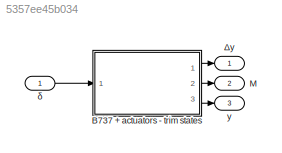
MODEL slx_5357ee45b034
KIND model
CONFIG AbsTol = auto
CONFIG EnableMultiTasking = off
CONFIG FixedStep = auto
CONFIG MaxStep = auto
CONFIG MinStep = auto
CONFIG RelTol = 1e-3
CONFIG SampleTimeConstraint = Unconstrained
CONFIG Solver = VariableStepAuto
CONFIG SolverName = VariableStepAuto
CONFIG StartTime = 0.0
CONFIG StopTime = 10.0
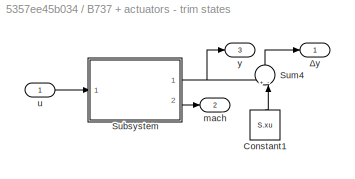
BLOCK [SubSystem] B737 + actuators - trim states
  Ports = [1, 3]
  RequestExecContextInheritance = off
BLOCK [Constant] B737 + actuators - trim states/Constant1
  Value = S.xu
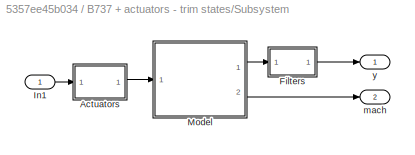
BLOCK [SubSystem] B737 + actuators - trim states/Subsystem
  Ports = [1, 2]
  RequestExecContextInheritance = off
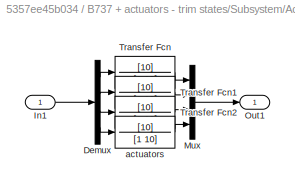
BLOCK [SubSystem] B737 + actuators - trim states/Subsystem/Actuators
  Ports = [1, 1]
  RequestExecContextInheritance = off
BLOCK [Demux] B737 + actuators - trim states/Subsystem/Actuators/Demux
  DisplayOption = bar
  Ports = [1, 4]
BLOCK [Inport] B737 + actuators - trim states/Subsystem/Actuators/In1
  IconDisplay = Port number
BLOCK [Mux] B737 + actuators - trim states/Subsystem/Actuators/Mux
  DisplayOption = bar
  Ports = [4, 1]
BLOCK [Outport] B737 + actuators - trim states/Subsystem/Actuators/Out1
  IconDisplay = Port number
BLOCK [TransferFcn] B737 + actuators - trim states/Subsystem/Actuators/Transfer Fcn
  Denominator = [1 10]
  Numerator = [10]
BLOCK [TransferFcn] B737 + actuators - trim states/Subsystem/Actuators/Transfer Fcn1
  Denominator = [1 10]
  Numerator = [10]
BLOCK [TransferFcn] B737 + actuators - trim states/Subsystem/Actuators/Transfer Fcn2
  Denominator = [1 10]
  Numerator = [10]
BLOCK [TransferFcn] B737 + actuators - trim states/Subsystem/Actuators/actuators
  Denominator = [1 10]
  Numerator = [10]
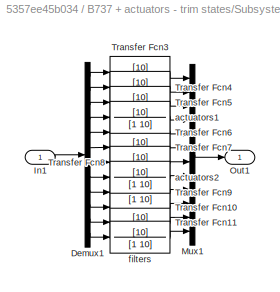
BLOCK [SubSystem] B737 + actuators - trim states/Subsystem/Filters
  Ports = [1, 1]
  RequestExecContextInheritance = off
BLOCK [Demux] B737 + actuators - trim states/Subsystem/Filters/Demux1
  DisplayOption = bar
  Outputs = 12
  Ports = [1, 12]
BLOCK [Inport] B737 + actuators - trim states/Subsystem/Filters/In1
  IconDisplay = Port number
BLOCK [Mux] B737 + actuators - trim states/Subsystem/Filters/Mux1
  DisplayOption = bar
  Inputs = 12
  Ports = [12, 1]
BLOCK [Outport] B737 + actuators - trim states/Subsystem/Filters/Out1
  IconDisplay = Port number
BLOCK [TransferFcn] B737 + actuators - trim states/Subsystem/Filters/Transfer Fcn10
  Denominator = [1 10]
  Numerator = [10]
BLOCK [TransferFcn] B737 + actuators - trim states/Subsystem/Filters/Transfer Fcn11
  Denominator = [1 10]
  Numerator = [10]
BLOCK [TransferFcn] B737 + actuators - trim states/Subsystem/Filters/Transfer Fcn3
  Denominator = [1 10]
  Numerator = [10]
BLOCK [TransferFcn] B737 + actuators - trim states/Subsystem/Filters/Transfer Fcn4
  Denominator = [1 10]
  Numerator = [10]
BLOCK [TransferFcn] B737 + actuators - trim states/Subsystem/Filters/Transfer Fcn5
  Denominator = [1 10]
  Numerator = [10]
BLOCK [TransferFcn] B737 + actuators - trim states/Subsystem/Filters/Transfer Fcn6
  Denominator = [1 10]
  Numerator = [10]
BLOCK [TransferFcn] B737 + actuators - trim states/Subsystem/Filters/Transfer Fcn7
  Denominator = [1 10]
  Numerator = [10]
BLOCK [TransferFcn] B737 + actuators - trim states/Subsystem/Filters/Transfer Fcn8
  Denominator = [1 10]
  Numerator = [10]
BLOCK [TransferFcn] B737 + actuators - trim states/Subsystem/Filters/Transfer Fcn9
  Denominator = [1 10]
  Numerator = [10]
BLOCK [TransferFcn] B737 + actuators - trim states/Subsystem/Filters/actuators1
  Denominator = [1 10]
  Numerator = [10]
BLOCK [TransferFcn] B737 + actuators - trim states/Subsystem/Filters/actuators2
  Denominator = [1 10]
  Numerator = [10]
BLOCK [TransferFcn] B737 + actuators - trim states/Subsystem/Filters/filters
  Denominator = [1 10]
  Numerator = [10]
BLOCK [Inport] B737 + actuators - trim states/Subsystem/In1
  IconDisplay = Port number
BLOCK [ModelReference] B737 + actuators - trim states/Subsystem/Model
  ModelNameDialog = B737_JSB.slx
  ModelReferenceVersion = 1.187
  Ports = [1, 2]
BLOCK [Outport] B737 + actuators - trim states/Subsystem/mach
  IconDisplay = Port number
  Port = 2
BLOCK [Outport] B737 + actuators - trim states/Subsystem/y
  IconDisplay = Port number
BLOCK [Sum] B737 + actuators - trim states/Sum4
  IconShape = round
  InputSameDT = off
  Inputs = +-|
  OutDataTypeStr = Inherit: Inherit via internal rule
  Ports = [2, 1]
  SaturateOnIntegerOverflow = off
BLOCK [Outport] B737 + actuators - trim states/mach
  IconDisplay = Port number
  Port = 2
BLOCK [Inport] B737 + actuators - trim states/u
  IconDisplay = Port number
BLOCK [Outport] B737 + actuators - trim states/y
  IconDisplay = Port number
  Port = 3
BLOCK [Outport] B737 + actuators - trim states/Δy
  IconDisplay = Port number
BLOCK [Outport] M
  IconDisplay = Port number
  Port = 2
BLOCK [Outport] y
  IconDisplay = Port number
  Port = 3
BLOCK [Outport] Δy
  IconDisplay = Port number
BLOCK [Inport] δ
  IconDisplay = Port number
LINE B737 + actuators - trim states/Constant1:1 -> B737 + actuators - trim states/Sum4:2
LINE B737 + actuators - trim states/Subsystem/Actuators/Demux:1 -> B737 + actuators - trim states/Subsystem/Actuators/Transfer Fcn:1
LINE B737 + actuators - trim states/Subsystem/Actuators/Demux:2 -> B737 + actuators - trim states/Subsystem/Actuators/Transfer Fcn1:1
LINE B737 + actuators - trim states/Subsystem/Actuators/Demux:3 -> B737 + actuators - trim states/Subsystem/Actuators/Transfer Fcn2:1
LINE B737 + actuators - trim states/Subsystem/Actuators/Demux:4 -> B737 + actuators - trim states/Subsystem/Actuators/actuators:1
LINE B737 + actuators - trim states/Subsystem/Actuators/In1:1 -> B737 + actuators - trim states/Subsystem/Actuators/Demux:1
LINE B737 + actuators - trim states/Subsystem/Actuators/Mux:1 -> B737 + actuators - trim states/Subsystem/Actuators/Out1:1
LINE B737 + actuators - trim states/Subsystem/Actuators/Transfer Fcn1:1 -> B737 + actuators - trim states/Subsystem/Actuators/Mux:2
LINE B737 + actuators - trim states/Subsystem/Actuators/Transfer Fcn2:1 -> B737 + actuators - trim states/Subsystem/Actuators/Mux:3
LINE B737 + actuators - trim states/Subsystem/Actuators/Transfer Fcn:1 -> B737 + actuators - trim states/Subsystem/Actuators/Mux:1
LINE B737 + actuators - trim states/Subsystem/Actuators/actuators:1 -> B737 + actuators - trim states/Subsystem/Actuators/Mux:4
LINE B737 + actuators - trim states/Subsystem/Actuators:1 -> B737 + actuators - trim states/Subsystem/Model:1
LINE B737 + actuators - trim states/Subsystem/Filters/Demux1:1 -> B737 + actuators - trim states/Subsystem/Filters/Transfer Fcn3:1
LINE B737 + actuators - trim states/Subsystem/Filters/Demux1:10 -> B737 + actuators - trim states/Subsystem/Filters/Transfer Fcn10:1
LINE B737 + actuators - trim states/Subsystem/Filters/Demux1:11 -> B737 + actuators - trim states/Subsystem/Filters/Transfer Fcn11:1
LINE B737 + actuators - trim states/Subsystem/Filters/Demux1:12 -> B737 + actuators - trim states/Subsystem/Filters/filters:1
LINE B737 + actuators - trim states/Subsystem/Filters/Demux1:2 -> B737 + actuators - trim states/Subsystem/Filters/Transfer Fcn4:1
LINE B737 + actuators - trim states/Subsystem/Filters/Demux1:3 -> B737 + actuators - trim states/Subsystem/Filters/Transfer Fcn5:1
LINE B737 + actuators - trim states/Subsystem/Filters/Demux1:4 -> B737 + actuators - trim states/Subsystem/Filters/actuators1:1
LINE B737 + actuators - trim states/Subsystem/Filters/Demux1:5 -> B737 + actuators - trim states/Subsystem/Filters/Transfer Fcn6:1
LINE B737 + actuators - trim states/Subsystem/Filters/Demux1:6 -> B737 + actuators - trim states/Subsystem/Filters/Transfer Fcn7:1
LINE B737 + actuators - trim states/Subsystem/Filters/Demux1:7 -> B737 + actuators - trim states/Subsystem/Filters/Transfer Fcn8:1
LINE B737 + actuators - trim states/Subsystem/Filters/Demux1:8 -> B737 + actuators - trim states/Subsystem/Filters/actuators2:1
LINE B737 + actuators - trim states/Subsystem/Filters/Demux1:9 -> B737 + actuators - trim states/Subsystem/Filters/Transfer Fcn9:1
LINE B737 + actuators - trim states/Subsystem/Filters/In1:1 -> B737 + actuators - trim states/Subsystem/Filters/Demux1:1
LINE B737 + actuators - trim states/Subsystem/Filters/Mux1:1 -> B737 + actuators - trim states/Subsystem/Filters/Out1:1
LINE B737 + actuators - trim states/Subsystem/Filters/Transfer Fcn10:1 -> B737 + actuators - trim states/Subsystem/Filters/Mux1:10
LINE B737 + actuators - trim states/Subsystem/Filters/Transfer Fcn11:1 -> B737 + actuators - trim states/Subsystem/Filters/Mux1:11
LINE B737 + actuators - trim states/Subsystem/Filters/Transfer Fcn3:1 -> B737 + actuators - trim states/Subsystem/Filters/Mux1:1
LINE B737 + actuators - trim states/Subsystem/Filters/Transfer Fcn4:1 -> B737 + actuators - trim states/Subsystem/Filters/Mux1:2
LINE B737 + actuators - trim states/Subsystem/Filters/Transfer Fcn5:1 -> B737 + actuators - trim states/Subsystem/Filters/Mux1:3
LINE B737 + actuators - trim states/Subsystem/Filters/Transfer Fcn6:1 -> B737 + actuators - trim states/Subsystem/Filters/Mux1:5
LINE B737 + actuators - trim states/Subsystem/Filters/Transfer Fcn7:1 -> B737 + actuators - trim states/Subsystem/Filters/Mux1:6
LINE B737 + actuators - trim states/Subsystem/Filters/Transfer Fcn8:1 -> B737 + actuators - trim states/Subsystem/Filters/Mux1:7
LINE B737 + actuators - trim states/Subsystem/Filters/Transfer Fcn9:1 -> B737 + actuators - trim states/Subsystem/Filters/Mux1:9
LINE B737 + actuators - trim states/Subsystem/Filters/actuators1:1 -> B737 + actuators - trim states/Subsystem/Filters/Mux1:4
LINE B737 + actuators - trim states/Subsystem/Filters/actuators2:1 -> B737 + actuators - trim states/Subsystem/Filters/Mux1:8
LINE B737 + actuators - trim states/Subsystem/Filters/filters:1 -> B737 + actuators - trim states/Subsystem/Filters/Mux1:12
LINE B737 + actuators - trim states/Subsystem/Filters:1 -> B737 + actuators - trim states/Subsystem/y:1
LINE B737 + actuators - trim states/Subsystem/In1:1 -> B737 + actuators - trim states/Subsystem/Actuators:1
LINE B737 + actuators - trim states/Subsystem/Model:1 -> B737 + actuators - trim states/Subsystem/Filters:1
LINE B737 + actuators - trim states/Subsystem/Model:2 -> B737 + actuators - trim states/Subsystem/mach:1
NET B737 + actuators - trim states/Subsystem:1 -> B737 + actuators - trim states/Sum4:1, B737 + actuators - trim states/y:1
LINE B737 + actuators - trim states/Subsystem:2 -> B737 + actuators - trim states/mach:1
LINE B737 + actuators - trim states/Sum4:1 -> B737 + actuators - trim states/Δy:1
LINE B737 + actuators - trim states/u:1 -> B737 + actuators - trim states/Subsystem:1
LINE B737 + actuators - trim states:1 -> Δy:1
LINE B737 + actuators - trim states:2 -> M:1
LINE B737 + actuators - trim states:3 -> y:1
LINE δ:1 -> B737 + actuators - trim states:1
note: NET lines group one-source signal fan-out (src -> all destinations, sorted); 1:1 wires keep LINE
